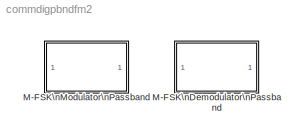
MODEL commdigpbndfm2
KIND library
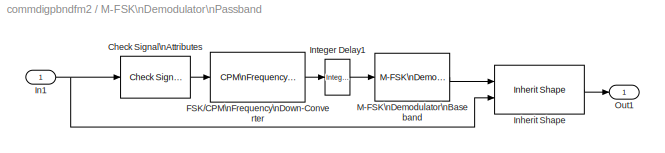
BLOCK [SubSystem] M-FSK\nDemodulator\nPassband
  MaskCallbackString = |commblkpbndfskdemod(gcb,'InType');|||||||
  MaskDescription = Demodulate the input signal using the frequency shift keying method.\n\nThe input signal must be a sample-based scalar. In case of bit output, the width of the output is the number of bits per symbol. The symbols can be either binary-demapped or Gray-demapped into bits.\n\nThe symbol period divided by the baseband samples per symbol must be an integer multiple of the input sample time.
  MaskDisplay = plot(0,0,100,100,[5+1.5*[[0:.8:10] [10:1.6:20] [20:.8:30]] 50 50 50 50+15*[0 1 1 2 2 3]],[85+10*[sin([0:.8:10]*pi*2/5) sin([10:1.6:20]*pi/5) sin([20:.8:30]*pi*2/5)] 85 99 75 85+8*[1 1 -1 -1 1 1]]);\ntext(51,51,'M-FSK','horiz','center','verti','middle');\n
  MaskEnableString = on,on,off,on,on,on,on,on,on
  MaskHelp = helpview(commbhelp)
  MaskIconFrame = on
  MaskIconOpaque = on
  MaskIconRotate = none
  MaskIconUnits = autoscale
  MaskInitialization = commblkdyampmdemod('M-FSK Demodulator Baseband','update');\ncommblkpbndfskdemod(gcb,'init');\n
  MaskPromptString = M-ary number:|Output type:|Symbol set ordering:|Frequency separation (Hz):|Symbol period (s):|Baseband samples per symbol:|Carrier frequency (Hz):|Carrier initial phase (rad):|Input sample time (s):
  MaskSelfModifiable = on
  MaskStyleString = edit,popup(Bit|Integer),popup(Binary|Gray),edit,edit,edit,edit,edit,edit
  MaskToolTipString = on,on,on,on,on,on,on,on,on
  MaskTunableValueString = off,off,off,off,off,off,off,off,off
  MaskType = M-FSK Demodulator Passband
  MaskValueString = 8|Integer|Binary|100|1/100|10|3000|0|1/10000
  MaskVarAliasString = ,,,,,,,,
  MaskVariables = M=@1;OutType=@2;Dec=@3;freqSep=@4;td=@5;numSamp=@6;Fc=@7;Ph=@8;InSamp=@9;
  MaskVisibilityString = on,on,on,on,on,on,on,on,on
  Ports = [1, 1]
  RTWFcnNameOpts = Auto
  RTWFileNameOpts = Auto
  RTWSystemCode = Auto
  ShowPortLabels = on
  TreatAsAtomicUnit = off
BLOCK [Reference] M-FSK\nDemodulator\nPassband/Check Signal\nAttributes  REF=dspsigattribs/Check Signal\nAttributes
  Complexity = Ignore
  DatatypeCheckMethod = Ignore
  DatatypeGeneral = Boolean
  Dimensions = 1-D
  DimsCheckMethod = Ignore
  DtypeFixedSpecific = Any fixed-point
  DtypeFloatSpecific = Any floating-point
  DtypeIntSpecific = Any integer
  Frame = Frame-based
  Ports = [1, 1]
  SampleMode = Ignore
  SigAttribCheckMethod = Matches attributes exactly
  SourceBlock = dspsigattribs/Check Signal\nAttributes
  SourceType = Check Signal Attributes
BLOCK [Reference] M-FSK\nDemodulator\nPassband/FSK//CPM\nFrequency\nDown-Converter  REF=commblksprivate/FSK//CPM\nFrequency\nDown-Converter
  AncestorBlock = commblksprivate/FSK//CPM\nFrequency\nDown-Converter
  Fc = Fc
  M = M
  Ph = Ph
  Ports = [1, 1]
  SourceBlock = commblksprivate/FSK//CPM\nFrequency\nDown-Converter
  SourceType = FSK/CPM Frequency Down-Converter
  Tin = InSamp
  Tout = td / numSamp
  freqSep = freqSep
  modType = FSK
  td = td
BLOCK [Inport] M-FSK\nDemodulator\nPassband/In1
  Interpolate = on
  LatchInput = off
  Port = 1
BLOCK [Reference] M-FSK\nDemodulator\nPassband/Inherit Shape  REF=commblksprivate/Inherit Shape
  Ports = [2, 1]
  SourceBlock = commblksprivate/Inherit Shape
  SourceType = Inherit Shape
BLOCK [Reference] M-FSK\nDemodulator\nPassband/Integer Delay1  REF=dspsigops/Integer Delay
  Ports = [1, 1]
  SourceBlock = dspsigops/Integer Delay
  SourceType = Integer Delay
  delay = numSamp-1
  ic = 0
BLOCK [Reference] M-FSK\nDemodulator\nPassband/M-FSK\nDemodulator\nBaseband  REF=commdigbbndfm2/M-FSK\nDemodulator\nBaseband
  Dec = Binary
  M = M
  OutType = Integer
  Ports = [1, 1]
  SourceBlock = commdigbbndfm2/M-FSK\nDemodulator\nBaseband
  SourceType = M-FSK Demodulator Baseband
  freqSep = freqSep
  numSamp = numSamp
BLOCK [Outport] M-FSK\nDemodulator\nPassband/Out1
  InitialOutput = []
  OutputWhenDisabled = held
  Port = 1
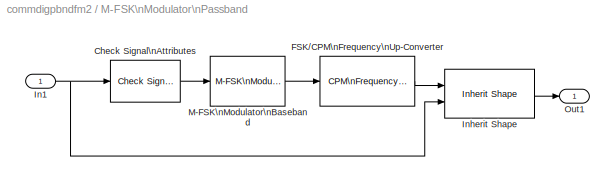
BLOCK [SubSystem] M-FSK\nModulator\nPassband
  MaskCallbackString = |commblkpbndfskmod(gcb,'InType');||||||||
  MaskDescription = Modulate the input signal using the frequency shift keying method. \n\nThe input signal must be sample-based. In case of integer input, the input must be a scalar. In case of bit input, the width of the input must equal the number of bits per symbol. The bits can be either binary-mapped or Gray-mapped into symbols.\n\nThe input sample time must equal the symbol period.  Also, the symbol period div...<+94ch>
  MaskDisplay = plot(0,0,100,100,[5+15*[0 1 1 2 2 3] 50 50 50 50+1.5*[[0:.8:10] [10:1.6:20] [20:.8:30]]],[85+8*[1 1 -1 -1 1 1] 85 99 75 85+10*[sin([0:.8:10]*pi*2/5) sin([10:1.6:20]*pi/5) sin([20:.8:30]*pi*2/5)]]);\ndisp('M-FSK')
  MaskEnableString = on,on,off,on,on,on,on,on,on,on
  MaskHelp = helpview(commbhelp)
  MaskIconFrame = on
  MaskIconOpaque = on
  MaskIconRotate = none
  MaskIconUnits = autoscale
  MaskInitialization = commblkdyampmmod('M-FSK Modulator Baseband','update');\ncommblkpbndfskmod(gcb,'init');\n
  MaskPromptString = M-ary number:|Input type:|Symbol set ordering:|Frequency separation (Hz):|Phase continuity:|Symbol period (s):|Baseband samples per symbol:|Carrier frequency (Hz):|Carrier initial phase (rad):|Output sample time (s):
  MaskSelfModifiable = on
  MaskStyleString = edit,popup(Bit|Integer),popup(Binary|Gray),edit,popup(Continuous|Discontinuous),edit,edit,edit,edit,edit
  MaskToolTipString = on,on,on,on,on,on,on,on,on,on
  MaskTunableValueString = off,off,off,off,off,off,off,off,off,off
  MaskType = M-FSK Modulator Passband
  MaskValueString = 8|Integer|Binary|100|Continuous|1/100|10|3000|0|1/10000
  MaskVarAliasString = ,,,,,,,,,
  MaskVariables = M=@1;InType=@2;Enc=@3;freqSep=@4;phaseType=@5;td=@6;numSamp=@7;Fc=@8;Ph=@9;OutSamp=@10;
  MaskVisibilityString = on,on,on,on,on,on,on,on,on,on
  Ports = [1, 1]
  RTWFcnNameOpts = Auto
  RTWFileNameOpts = Auto
  RTWSystemCode = Auto
  ShowPortLabels = on
  TreatAsAtomicUnit = off
BLOCK [Reference] M-FSK\nModulator\nPassband/Check Signal\nAttributes  REF=dspsigattribs/Check Signal\nAttributes
  Complexity = Ignore
  DatatypeCheckMethod = Ignore
  DatatypeGeneral = Boolean
  Dimensions = 1-D
  DimsCheckMethod = Ignore
  DtypeFixedSpecific = Any fixed-point
  DtypeFloatSpecific = Any floating-point
  DtypeIntSpecific = Any integer
  Frame = Frame-based
  Ports = [1, 1]
  SampleMode = Ignore
  SigAttribCheckMethod = Matches attributes exactly
  SourceBlock = dspsigattribs/Check Signal\nAttributes
  SourceType = Check Signal Attributes
BLOCK [Reference] M-FSK\nModulator\nPassband/FSK//CPM\nFrequency\nUp-Converter  REF=commblksprivate/FSK//CPM\nFrequency\nUp-Converter
  Fc = Fc
  M = M
  Ph = Ph
  Ports = [1, 1]
  SourceBlock = commblksprivate/FSK//CPM\nFrequency\nUp-Converter
  SourceType = FSK/CPM Frequency Up-Converter
  Tin = td / numSamp
  Tout = OutSamp
  freqSep = freqSep
  modType = FSK
  td = td
BLOCK [Inport] M-FSK\nModulator\nPassband/In1
  Interpolate = on
  LatchInput = off
  Port = 1
BLOCK [Reference] M-FSK\nModulator\nPassband/Inherit Shape  REF=commblksprivate/Inherit Shape
  Ports = [2, 1]
  SourceBlock = commblksprivate/Inherit Shape
  SourceType = Inherit Shape
BLOCK [Reference] M-FSK\nModulator\nPassband/M-FSK\nModulator\nBaseband  REF=commdigbbndfm2/M-FSK\nModulator\nBaseband
  Enc = Binary
  InType = Integer
  M = M
  Ports = [1, 1]
  SourceBlock = commdigbbndfm2/M-FSK\nModulator\nBaseband
  SourceType = M-FSK Modulator Baseband
  freqSep = freqSep
  numSamp = numSamp
  phaseType = Continuous
BLOCK [Outport] M-FSK\nModulator\nPassband/Out1
  InitialOutput = []
  OutputWhenDisabled = held
  Port = 1
LINE M-FSK\nDemodulator\nPassband/Check Signal\nAttributes:1 -> M-FSK\nDemodulator\nPassband/FSK//CPM\nFrequency\nDown-Converter:1
LINE M-FSK\nDemodulator\nPassband/FSK//CPM\nFrequency\nDown-Converter:1 -> M-FSK\nDemodulator\nPassband/Integer Delay1:1
NET M-FSK\nDemodulator\nPassband/In1:1 -> M-FSK\nDemodulator\nPassband/Check Signal\nAttributes:1, M-FSK\nDemodulator\nPassband/Inherit Shape:2
LINE M-FSK\nDemodulator\nPassband/Inherit Shape:1 -> M-FSK\nDemodulator\nPassband/Out1:1
LINE M-FSK\nDemodulator\nPassband/Integer Delay1:1 -> M-FSK\nDemodulator\nPassband/M-FSK\nDemodulator\nBaseband:1
LINE M-FSK\nDemodulator\nPassband/M-FSK\nDemodulator\nBaseband:1 -> M-FSK\nDemodulator\nPassband/Inherit Shape:1
LINE M-FSK\nModulator\nPassband/Check Signal\nAttributes:1 -> M-FSK\nModulator\nPassband/M-FSK\nModulator\nBaseband:1
LINE M-FSK\nModulator\nPassband/FSK//CPM\nFrequency\nUp-Converter:1 -> M-FSK\nModulator\nPassband/Inherit Shape:1
NET M-FSK\nModulator\nPassband/In1:1 -> M-FSK\nModulator\nPassband/Check Signal\nAttributes:1, M-FSK\nModulator\nPassband/Inherit Shape:2
LINE M-FSK\nModulator\nPassband/Inherit Shape:1 -> M-FSK\nModulator\nPassband/Out1:1
LINE M-FSK\nModulator\nPassband/M-FSK\nModulator\nBaseband:1 -> M-FSK\nModulator\nPassband/FSK//CPM\nFrequency\nUp-Converter:1
note: NET lines group one-source signal fan-out (src -> all destinations, sorted); 1:1 wires keep LINE
